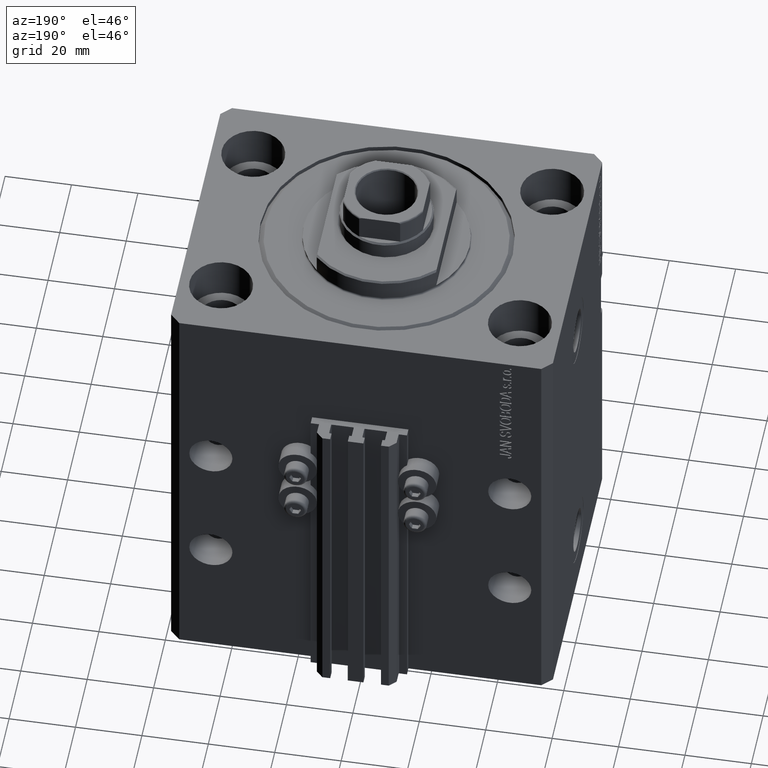
[diagram: clean part render]
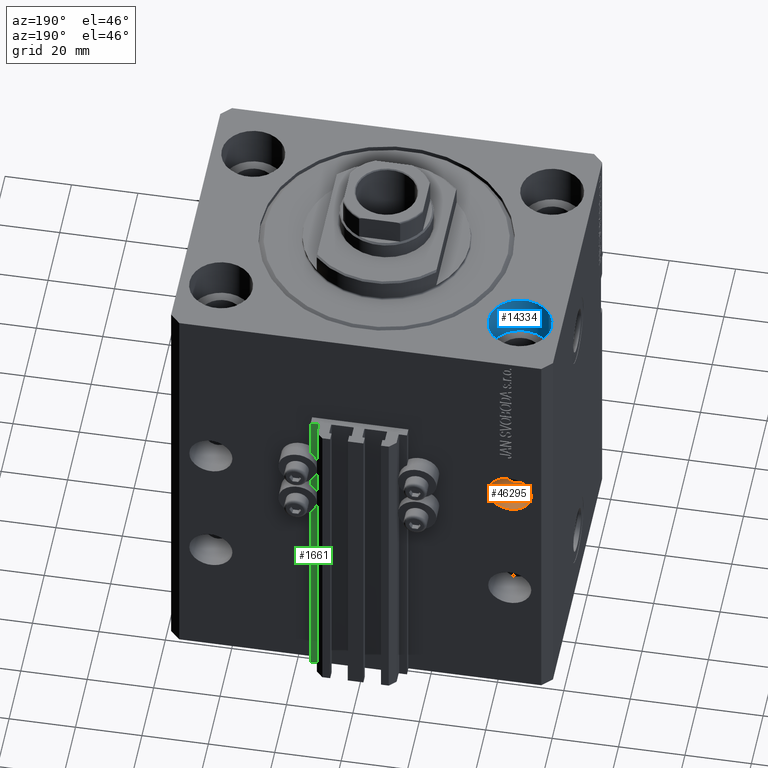
[diagram: same view with three faces highlighted in distinct colors, each labeled with its STEP entity id]
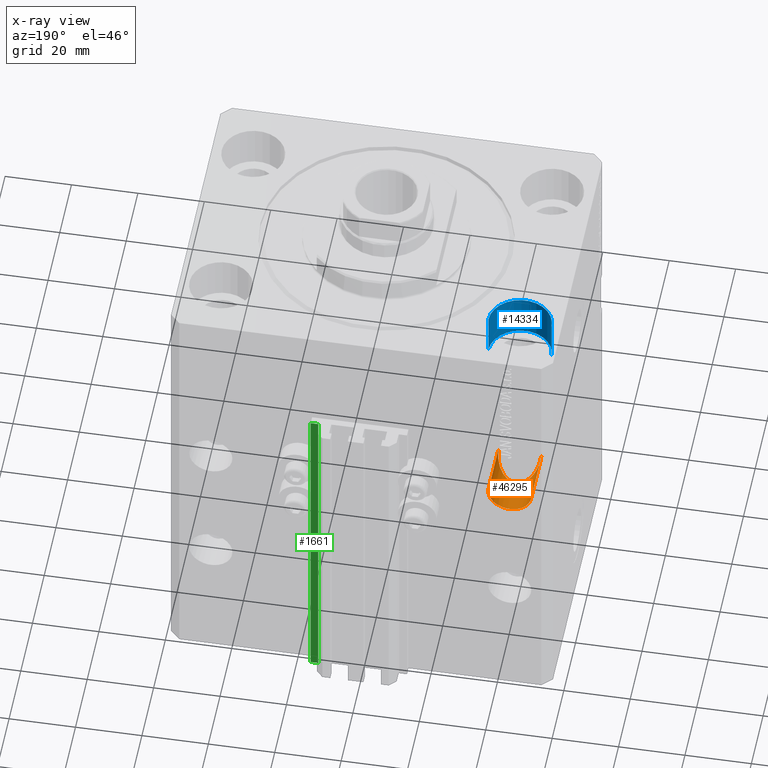
[diagram: x-ray of the same camera — body ghosted, the three highlighted faces saturated]
A machine part, auxiliary view with three faces highlighted in distinct colors.
The next image is the same camera in x-ray (body ghosted, the three faces saturated) — at least one of them is partly hidden behind the body in this view.
Their STEP definitions:

[orange] entity #46295 — the highlighted cylindrical surface (edge-blend (fillet) strip) has radius 6.5 mm, axis along (0, -1, 0).
#1005 = CARTESIAN_POINT ( 'NONE',  ( -51.50000000000000000, 27.50000000000000355, -55.00000000000002132 ) ) ;
#1767 = EDGE_LOOP ( 'NONE', ( #7242, #11214, #19933, #29754 ) ) ;
#2830 = VECTOR ( 'NONE', #42639, 1000.000000000000000 ) ;
#4114 = CARTESIAN_POINT ( 'NONE',  ( -51.49999999999999289, 53.00000000000002842, -55.00000000000001421 ) ) ;
#4626 = EDGE_CURVE ( 'NONE', #9939, #27006, #16742, .T. ) ;
#5081 = DIRECTION ( 'NONE',  ( -2.546383084002639322E-16, 1.000000000000000000, 0.000000000000000000 ) ) ;
#7040 = VERTEX_POINT ( 'NONE', #1005 ) ;
#7242 = ORIENTED_EDGE ( 'NONE', *, *, #39365, .T. ) ;
#7608 = DIRECTION ( 'NONE',  ( 1.000000000000000000, 0.000000000000000000, 0.000000000000000000 ) ) ;
#8103 = FACE_OUTER_BOUND ( 'NONE', #1767, .T. ) ;
#8828 = DIRECTION ( 'NONE',  ( 1.101411730780568590E-16, -1.000000000000000000, -0.000000000000000000 ) ) ;
#9513 = AXIS2_PLACEMENT_3D ( 'NONE', #26287, #34229, #7608 ) ;
#9939 = VERTEX_POINT ( 'NONE', #23927 ) ;
#11214 = ORIENTED_EDGE ( 'NONE', *, *, #41435, .T. ) ;
#14670 = EDGE_CURVE ( 'NONE', #27006, #7040, #19255, .T. ) ;
#16742 = LINE ( 'NONE', #27458, #2830 ) ;
#19255 =( BOUNDED_CURVE ( )  B_SPLINE_CURVE ( 3, ( #48750, #26126, #29367, #21660 ),
 .UNSPECIFIED., .F., .T. ) 
 B_SPLINE_CURVE_WITH_KNOTS ( ( 4, 4 ),
 ( 1.570796326794896558, 4.712388980384689674 ),
 .UNSPECIFIED. ) 
 CURVE ( )  GEOMETRIC_REPRESENTATION_ITEM ( )  RATIONAL_B_SPLINE_CURVE ( ( 1.000000000000000000, 0.3333333333333333703, 0.3333333333333333703, 1.000000000000000000 ) ) 
 REPRESENTATION_ITEM ( '' )  );
#19763 = DIRECTION ( 'NONE',  ( -1.000000000000000000, 0.000000000000000000, 0.000000000000000000 ) ) ;
#19933 = ORIENTED_EDGE ( 'NONE', *, *, #14670, .F. ) ;
#20493 = VECTOR ( 'NONE', #8828, 1000.000000000000000 ) ;
#21660 = CARTESIAN_POINT ( 'NONE',  ( -51.50000000000000000, 27.50000000000000355, -55.00000000000002132 ) ) ;
#23927 = CARTESIAN_POINT ( 'NONE',  ( -38.49999999999999289, 45.00000000000000000, -55.00000000000001421 ) ) ;
#26126 = CARTESIAN_POINT ( 'NONE',  ( -38.49999999999999289, 40.50000000000000000, -68.00000000000001421 ) ) ;
#26287 = CARTESIAN_POINT ( 'NONE',  ( -44.99999999999999289, 53.00000000000002842, -55.00000000000001421 ) ) ;
#27006 = VERTEX_POINT ( 'NONE', #38660 ) ;
#27458 = CARTESIAN_POINT ( 'NONE',  ( -38.49999999999999289, 53.00000000000002842, -55.00000000000001421 ) ) ;
#29367 = CARTESIAN_POINT ( 'NONE',  ( -51.50000000000000000, 40.50000000000000000, -68.00000000000001421 ) ) ;
#29754 = ORIENTED_EDGE ( 'NONE', *, *, #4626, .F. ) ;
#31946 = CARTESIAN_POINT ( 'NONE',  ( -44.99999999999999289, 45.00000000000000000, -55.00000000000001421 ) ) ;
#33119 = AXIS2_PLACEMENT_3D ( 'NONE', #31946, #5081, #19763 ) ;
#34229 = DIRECTION ( 'NONE',  ( 1.101411730780568590E-16, -1.000000000000000000, -0.000000000000000000 ) ) ;
#38205 = LINE ( 'NONE', #4114, #20493 ) ;
#38660 = CARTESIAN_POINT ( 'NONE',  ( -38.50000000000000000, 27.50000000000000355, -55.00000000000002132 ) ) ;
#39365 = EDGE_CURVE ( 'NONE', #9939, #44589, #49030, .T. ) ;
#41435 = EDGE_CURVE ( 'NONE', #44589, #7040, #38205, .T. ) ;
#42639 = DIRECTION ( 'NONE',  ( 1.101411730780568590E-16, -1.000000000000000000, -0.000000000000000000 ) ) ;
#44589 = VERTEX_POINT ( 'NONE', #45462 ) ;
#45462 = CARTESIAN_POINT ( 'NONE',  ( -51.49999999999999289, 45.00000000000000000, -55.00000000000001421 ) ) ;
#45674 = CYLINDRICAL_SURFACE ( 'NONE', #9513, 6.499999999999999112 ) ;
#46295 = ADVANCED_FACE ( 'NONE', ( #8103 ), #45674, .F. ) ;
#48750 = CARTESIAN_POINT ( 'NONE',  ( -38.50000000000000000, 27.50000000000000355, -55.00000000000002132 ) ) ;
#49030 = CIRCLE ( 'NONE', #33119, 6.499999999999999112 ) ;

[blue] entity #14334 — the highlighted cylindrical surface (edge-blend (fillet) strip) has radius 9.5 mm, axis along (0, 0, 1).
#1628 = VERTEX_POINT ( 'NONE', #29856 ) ;
#3526 = LINE ( 'NONE', #48803, #43922 ) ;
#4036 = AXIS2_PLACEMENT_3D ( 'NONE', #19888, #12906, #30833 ) ;
#4535 = DIRECTION ( 'NONE',  ( 1.000000000000000000, 0.000000000000000000, 0.000000000000000000 ) ) ;
#4926 = ORIENTED_EDGE ( 'NONE', *, *, #44682, .T. ) ;
#5612 = DIRECTION ( 'NONE',  ( -0.000000000000000000, -0.000000000000000000, 1.000000000000000000 ) ) ;
#6119 = LINE ( 'NONE', #10088, #9485 ) ;
#8520 = EDGE_LOOP ( 'NONE', ( #15252, #4926, #10129, #27380 ) ) ;
#9485 = VECTOR ( 'NONE', #25034, 1000.000000000000000 ) ;
#10088 = CARTESIAN_POINT ( 'NONE',  ( -54.50000000000000000, 27.50000000000000355, -13.00000000000000000 ) ) ;
#10129 = ORIENTED_EDGE ( 'NONE', *, *, #13530, .T. ) ;
#12906 = DIRECTION ( 'NONE',  ( 0.000000000000000000, 0.000000000000000000, 1.000000000000000000 ) ) ;
#13530 = EDGE_CURVE ( 'NONE', #47474, #39349, #41940, .T. ) ;
#14334 = ADVANCED_FACE ( 'NONE', ( #26186 ), #37622, .F. ) ;
#15252 = ORIENTED_EDGE ( 'NONE', *, *, #47423, .F. ) ;
#15537 = VERTEX_POINT ( 'NONE', #27964 ) ;
#15721 = DIRECTION ( 'NONE',  ( 0.000000000000000000, 0.000000000000000000, 1.000000000000000000 ) ) ;
#19464 = CARTESIAN_POINT ( 'NONE',  ( -45.00000000000000000, 27.50000000000000355, 0.000000000000000000 ) ) ;
#19888 = CARTESIAN_POINT ( 'NONE',  ( -45.00000000000000000, 27.50000000000000355, -13.00000000000000000 ) ) ;
#20134 = CARTESIAN_POINT ( 'NONE',  ( -54.50000000000000000, 27.50000000000000355, 0.000000000000000000 ) ) ;
#25034 = DIRECTION ( 'NONE',  ( -0.000000000000000000, -0.000000000000000000, 1.000000000000000000 ) ) ;
#25138 = EDGE_CURVE ( 'NONE', #1628, #39349, #3526, .T. ) ;
#26186 = FACE_OUTER_BOUND ( 'NONE', #8520, .T. ) ;
#27380 = ORIENTED_EDGE ( 'NONE', *, *, #25138, .F. ) ;
#27964 = CARTESIAN_POINT ( 'NONE',  ( -54.50000000000000000, 27.50000000000000355, -13.00000000000000000 ) ) ;
#29856 = CARTESIAN_POINT ( 'NONE',  ( -35.50000000000000000, 27.50000000000000355, -13.00000000000000000 ) ) ;
#30833 = DIRECTION ( 'NONE',  ( 1.000000000000000000, 0.000000000000000000, 0.000000000000000000 ) ) ;
#31197 = CARTESIAN_POINT ( 'NONE',  ( -35.50000000000000000, 27.50000000000000355, 0.000000000000000000 ) ) ;
#33883 = DIRECTION ( 'NONE',  ( -0.000000000000000000, -0.000000000000000000, 1.000000000000000000 ) ) ;
#36440 = AXIS2_PLACEMENT_3D ( 'NONE', #45336, #33883, #37131 ) ;
#37131 = DIRECTION ( 'NONE',  ( 1.000000000000000000, 0.000000000000000000, 0.000000000000000000 ) ) ;
#37622 = CYLINDRICAL_SURFACE ( 'NONE', #36440, 9.500000000000001776 ) ;
#39349 = VERTEX_POINT ( 'NONE', #31197 ) ;
#41940 = CIRCLE ( 'NONE', #46688, 9.500000000000001776 ) ;
#42940 = CIRCLE ( 'NONE', #4036, 9.500000000000001776 ) ;
#43922 = VECTOR ( 'NONE', #5612, 1000.000000000000000 ) ;
#44682 = EDGE_CURVE ( 'NONE', #15537, #47474, #6119, .T. ) ;
#45336 = CARTESIAN_POINT ( 'NONE',  ( -45.00000000000000000, 27.50000000000000355, -13.00000000000000000 ) ) ;
#46688 = AXIS2_PLACEMENT_3D ( 'NONE', #19464, #15721, #4535 ) ;
#47423 = EDGE_CURVE ( 'NONE', #15537, #1628, #42940, .T. ) ;
#47474 = VERTEX_POINT ( 'NONE', #20134 ) ;
#48803 = CARTESIAN_POINT ( 'NONE',  ( -35.50000000000000000, 27.50000000000000355, -13.00000000000000000 ) ) ;

[green] entity #1661 — the highlighted planar face has unit normal (0, 1, 0).
#742 = PLANE ( 'NONE',  #42474 ) ;
#1657 = EDGE_CURVE ( 'NONE', #6995, #4734, #41559, .T. ) ;
#1661 = ADVANCED_FACE ( 'NONE', ( #42784 ), #742, .T. ) ;
#4137 = EDGE_CURVE ( 'NONE', #6995, #46062, #31233, .T. ) ;
#4734 = VERTEX_POINT ( 'NONE', #36654 ) ;
#6004 = VECTOR ( 'NONE', #11585, 1000.000000000000000 ) ;
#6632 = LINE ( 'NONE', #47942, #8511 ) ;
#6995 = VERTEX_POINT ( 'NONE', #28607 ) ;
#8511 = VECTOR ( 'NONE', #33492, 1000.000000000000000 ) ;
#9845 = CARTESIAN_POINT ( 'NONE',  ( 12.20000000000000107, 47.50000000000001421, -135.0000000000000000 ) ) ;
#11585 = DIRECTION ( 'NONE',  ( 0.000000000000000000, 0.000000000000000000, 1.000000000000000000 ) ) ;
#12296 = EDGE_CURVE ( 'NONE', #4734, #45428, #17561, .T. ) ;
#17561 = LINE ( 'NONE', #9845, #42847 ) ;
#26558 = VECTOR ( 'NONE', #42532, 1000.000000000000000 ) ;
#26861 = DIRECTION ( 'NONE',  ( 0.000000000000000000, 1.000000000000000000, -0.000000000000000000 ) ) ;
#28534 = DIRECTION ( 'NONE',  ( 0.000000000000000000, 0.000000000000000000, 1.000000000000000000 ) ) ;
#28607 = CARTESIAN_POINT ( 'NONE',  ( 14.49999999999999645, 47.50000000000001421, -135.0000000000000000 ) ) ;
#30796 = CARTESIAN_POINT ( 'NONE',  ( 14.49999999999999645, 47.50000000000001421, -33.00000000000000000 ) ) ;
#31233 = LINE ( 'NONE', #45680, #6004 ) ;
#33492 = DIRECTION ( 'NONE',  ( -1.000000000000000000, 0.000000000000000000, 0.000000000000000000 ) ) ;
#34814 = DIRECTION ( 'NONE',  ( 0.000000000000000000, 0.000000000000000000, 1.000000000000000000 ) ) ;
#36654 = CARTESIAN_POINT ( 'NONE',  ( 12.20000000000000107, 47.50000000000001421, -135.0000000000000000 ) ) ;
#37813 = CARTESIAN_POINT ( 'NONE',  ( 14.49999999999999645, 47.50000000000001421, -135.0000000000000000 ) ) ;
#38725 = EDGE_CURVE ( 'NONE', #46062, #45428, #6632, .T. ) ;
#38799 = CARTESIAN_POINT ( 'NONE',  ( 14.49999999999999645, 47.50000000000001421, -135.0000000000000000 ) ) ;
#39747 = ORIENTED_EDGE ( 'NONE', *, *, #38725, .F. ) ;
#41222 = ORIENTED_EDGE ( 'NONE', *, *, #1657, .T. ) ;
#41559 = LINE ( 'NONE', #37813, #26558 ) ;
#42474 = AXIS2_PLACEMENT_3D ( 'NONE', #38799, #26861, #34814 ) ;
#42532 = DIRECTION ( 'NONE',  ( -1.000000000000000000, 0.000000000000000000, 0.000000000000000000 ) ) ;
#42784 = FACE_OUTER_BOUND ( 'NONE', #45807, .T. ) ;
#42847 = VECTOR ( 'NONE', #28534, 1000.000000000000000 ) ;
#43419 = ORIENTED_EDGE ( 'NONE', *, *, #12296, .T. ) ;
#43622 = CARTESIAN_POINT ( 'NONE',  ( 12.20000000000000107, 47.50000000000001421, -33.00000000000000000 ) ) ;
#45428 = VERTEX_POINT ( 'NONE', #43622 ) ;
#45680 = CARTESIAN_POINT ( 'NONE',  ( 14.49999999999999645, 47.50000000000001421, -135.0000000000000000 ) ) ;
#45807 = EDGE_LOOP ( 'NONE', ( #39747, #48042, #41222, #43419 ) ) ;
#46062 = VERTEX_POINT ( 'NONE', #30796 ) ;
#47942 = CARTESIAN_POINT ( 'NONE',  ( 14.49999999999999645, 47.50000000000001421, -33.00000000000000000 ) ) ;
#48042 = ORIENTED_EDGE ( 'NONE', *, *, #4137, .F. ) ;